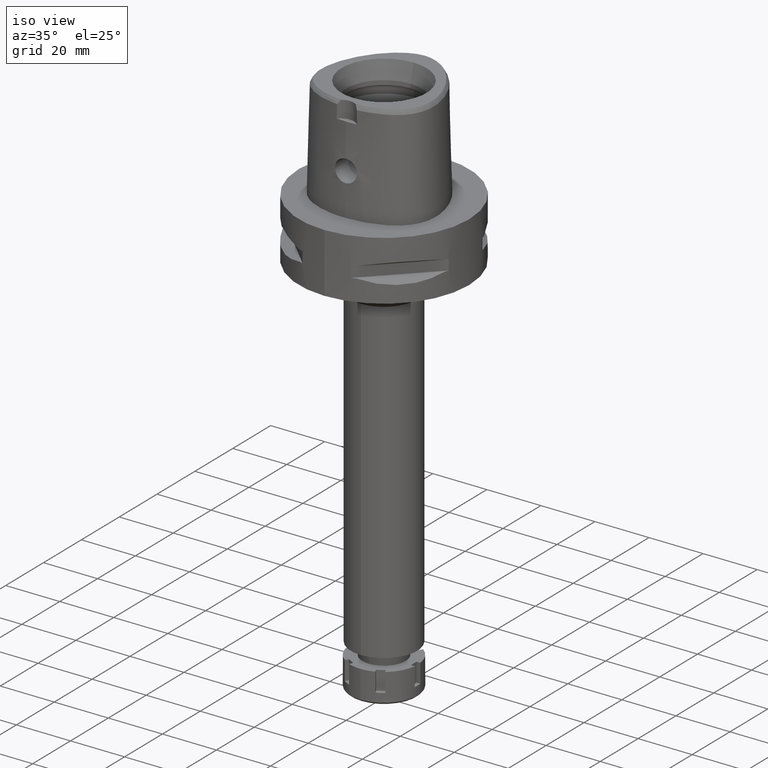
[diagram: clean part render]
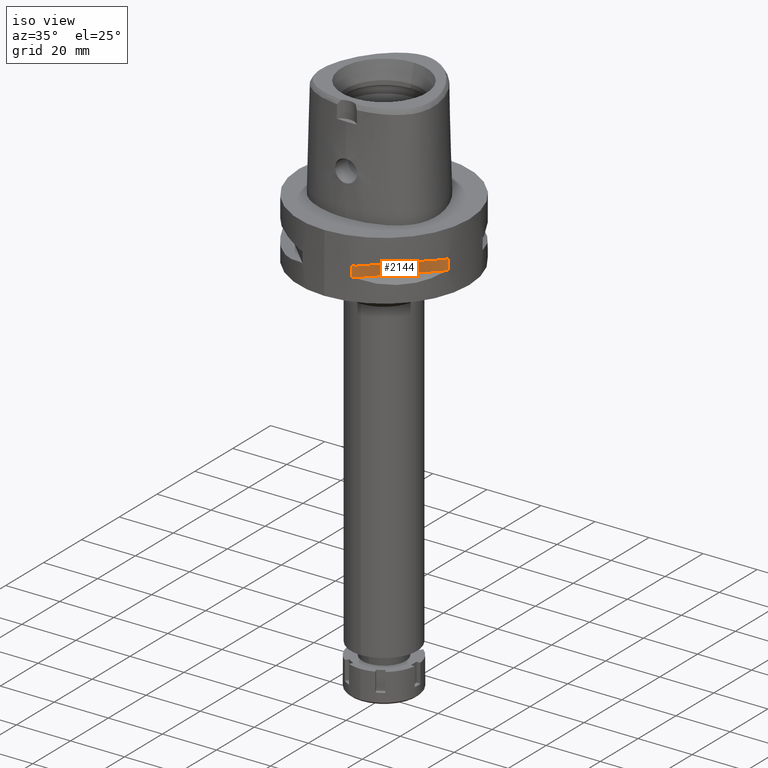
[diagram: same view with one face highlighted and labeled with its STEP entity id]
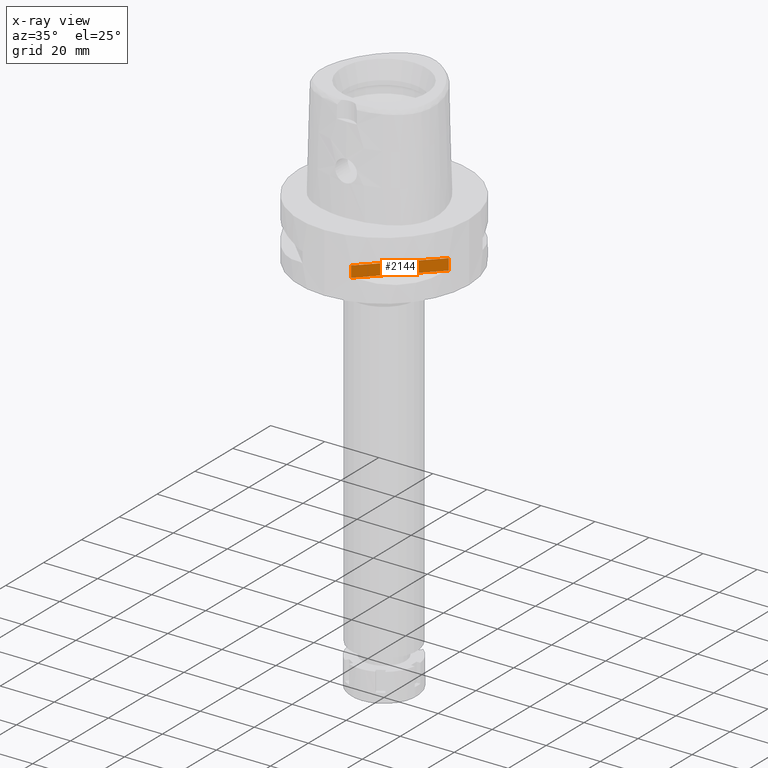
[diagram: x-ray of the same camera — body ghosted, the highlighted face saturated]
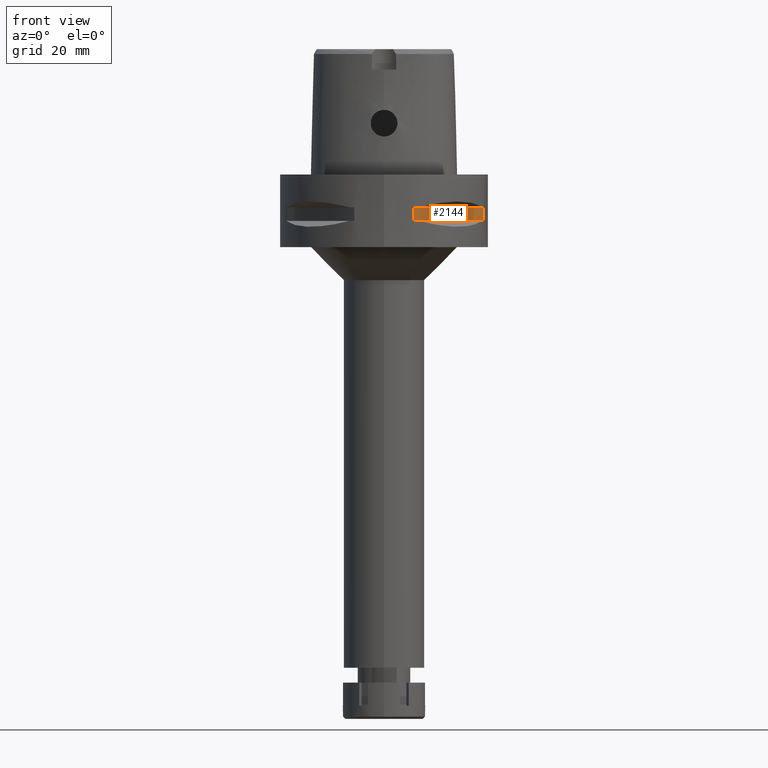
[diagram: same view with one face highlighted and labeled with its STEP entity id]
A machine part, iso view. The second image highlights one B-rep face of the part: STEP entity #2144.
The next image is the same camera in x-ray: the body ghosted, the highlighted face saturated — about 0% of this face is hidden behind the body in this view.
A second angle (front view) of the same face is appended — the face is thin or edge-on in the first view.
In plain terms, the highlighted planar face has unit normal (-0.7071, 0.7071, 0).
Its self-contained STEP definition (entity closure, byte-faithful):
#59 = EDGE_CURVE ( 'NONE', #2350, #1208, #2191, .T. ) ;
#227 = CARTESIAN_POINT ( 'NONE',  ( 8.981198972017999438, -30.19251670572000279, -14.05000000000000071 ) ) ;
#490 = VECTOR ( 'NONE', #2929, 1000.000000000000114 ) ;
#497 = EDGE_CURVE ( 'NONE', #1208, #2252, #1495, .T. ) ;
#528 = ORIENTED_EDGE ( 'NONE', *, *, #497, .T. ) ;
#561 = CARTESIAN_POINT ( 'NONE',  ( 8.981198972017999438, -30.19251670572000279, -9.950000000000001066 ) ) ;
#750 = DIRECTION ( 'NONE',  ( 0.0000000000000000000, 0.0000000000000000000, 1.000000000000000000 ) ) ;
#775 = VECTOR ( 'NONE', #3524, 1000.000000000000000 ) ;
#1063 = EDGE_CURVE ( 'NONE', #2252, #1760, #4553, .T. ) ;
#1144 = CARTESIAN_POINT ( 'NONE',  ( 30.19251670572000279, -8.981198972017999438, -14.05000000000000071 ) ) ;
#1208 = VERTEX_POINT ( 'NONE', #3842 ) ;
#1495 = LINE ( 'NONE', #227, #490 ) ;
#1531 = DIRECTION ( 'NONE',  ( -0.7071067811865475727, 0.7071067811865475727, 0.0000000000000000000 ) ) ;
#1639 = CARTESIAN_POINT ( 'NONE',  ( 30.19251670572000279, -8.981198972019999616, -14.05000000000000071 ) ) ;
#1760 = VERTEX_POINT ( 'NONE', #2524 ) ;
#2046 = VECTOR ( 'NONE', #2996, 1000.000000000000114 ) ;
#2144 = ADVANCED_FACE ( 'NONE', ( #4102 ), #3595, .F. ) ;
#2191 = LINE ( 'NONE', #561, #775 ) ;
#2215 = AXIS2_PLACEMENT_3D ( 'NONE', #4045, #1531, #4446 ) ;
#2230 = CARTESIAN_POINT ( 'NONE',  ( 8.981198972019999616, -30.19251670572000279, -9.950000000000001066 ) ) ;
#2252 = VERTEX_POINT ( 'NONE', #1639 ) ;
#2350 = VERTEX_POINT ( 'NONE', #2230 ) ;
#2524 = CARTESIAN_POINT ( 'NONE',  ( 30.19251670572000279, -8.981198972017999438, -9.950000000000001066 ) ) ;
#2911 = CARTESIAN_POINT ( 'NONE',  ( 8.981198972017999438, -30.19251670572000279, -9.950000000000001066 ) ) ;
#2915 = EDGE_LOOP ( 'NONE', ( #3372, #5236, #528, #3204 ) ) ;
#2929 = DIRECTION ( 'NONE',  ( 0.7071067811865474617, 0.7071067811865474617, 0.0000000000000000000 ) ) ;
#2996 = DIRECTION ( 'NONE',  ( 0.7071067811865474617, 0.7071067811865474617, 0.0000000000000000000 ) ) ;
#3112 = VECTOR ( 'NONE', #750, 1000.000000000000000 ) ;
#3204 = ORIENTED_EDGE ( 'NONE', *, *, #1063, .T. ) ;
#3372 = ORIENTED_EDGE ( 'NONE', *, *, #4853, .F. ) ;
#3524 = DIRECTION ( 'NONE',  ( 0.0000000000000000000, 0.0000000000000000000, -1.000000000000000000 ) ) ;
#3595 = PLANE ( 'NONE',  #2215 ) ;
#3842 = CARTESIAN_POINT ( 'NONE',  ( 8.981198972017999438, -30.19251670572000279, -14.05000000000000071 ) ) ;
#4045 = CARTESIAN_POINT ( 'NONE',  ( 33.72899346260000186, -5.444722215136000187, -9.950000000000001066 ) ) ;
#4102 = FACE_OUTER_BOUND ( 'NONE', #2915, .T. ) ;
#4446 = DIRECTION ( 'NONE',  ( 0.0000000000000000000, 0.0000000000000000000, 1.000000000000000000 ) ) ;
#4503 = LINE ( 'NONE', #2911, #2046 ) ;
#4553 = LINE ( 'NONE', #1144, #3112 ) ;
#4853 = EDGE_CURVE ( 'NONE', #2350, #1760, #4503, .T. ) ;
#5236 = ORIENTED_EDGE ( 'NONE', *, *, #59, .T. ) ;